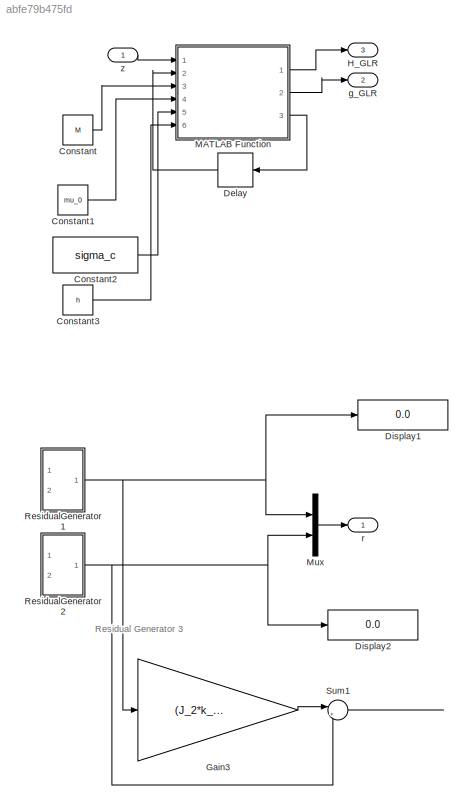
MODEL slx_abfe79b475fd
KIND model
CONFIG AbsTol = auto
CONFIG EnableMultiTasking = off
CONFIG FixedStep = auto
CONFIG MaxStep = auto
CONFIG MinStep = auto
CONFIG RelTol = 1e-3
CONFIG SampleTimeConstraint = Unconstrained
CONFIG Solver = VariableStepAuto
CONFIG SolverName = VariableStepAuto
CONFIG StartTime = 0.0
CONFIG StopTime = 10.0
BLOCK [Constant] Constant
  Value = M
BLOCK [Constant] Constant1
  Value = mu_0
BLOCK [Constant] Constant2
  Value = sigma_c
BLOCK [Constant] Constant3
  Value = h
BLOCK [Delay] Delay
  DelayLength = 1
  InitialCondition = r_window
  InputPortMap = u0
  Ports = [1, 1]
  SampleTime = T_s
BLOCK [Display] Display1
  Decimation = 1
  Ports = [1]
BLOCK [Display] Display2
  Decimation = 1
  Ports = [1]
BLOCK [Gain] Gain3
  Gain = (J_2*k_2)/(J_3*k_1+J_3*k_2)
BLOCK [Outport] H_GLR
  Port = 3
  VectorParamsAs1DForOutWhenUnconnected = off
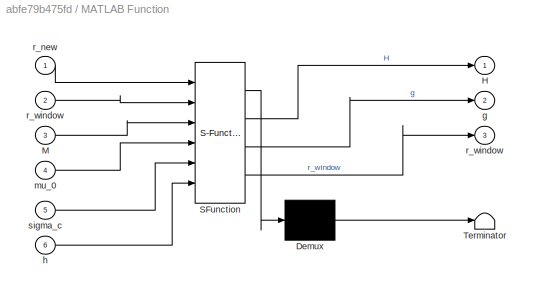
BLOCK [SubSystem] MATLAB Function
  ErrorFcn = Stateflow.Translate.translate
  PermitHierarchicalResolution = ExplicitOnly
  Ports = [6, 3]
  RequestExecContextInheritance = off
  SFBlockType = MATLAB Function
  TreatAsAtomicUnit = on
BLOCK [Demux] MATLAB Function/ Demux 
  Outputs = 1
  Ports = [1, 1]
BLOCK [S-Function] MATLAB Function/ SFunction 
  EnableBusSupport = on
  FunctionName = sf_sfun
  PortCounts = [6 4]
  Ports = [6, 4]
  SFcnIsStateOwnerBlock = off
  SFunctionDeploymentMode = off
  Tag = Stateflow S-Function group10 2
BLOCK [Terminator] MATLAB Function/ Terminator 
BLOCK [Outport] MATLAB Function/H
BLOCK [Inport] MATLAB Function/M
  Port = 3
BLOCK [Outport] MATLAB Function/g
  Port = 2
BLOCK [Inport] MATLAB Function/h
  Port = 6
BLOCK [Inport] MATLAB Function/mu_0
  Port = 4
BLOCK [Inport] MATLAB Function/r_new
BLOCK [Outport] MATLAB Function/r_window
  Port = 3
BLOCK [Inport] MATLAB Function/r_window 
  Port = 2
BLOCK [Inport] MATLAB Function/sigma_c
  Port = 5
BLOCK [Mux] Mux
  DisplayOption = bar
  Inputs = 2
  Ports = [2, 1]
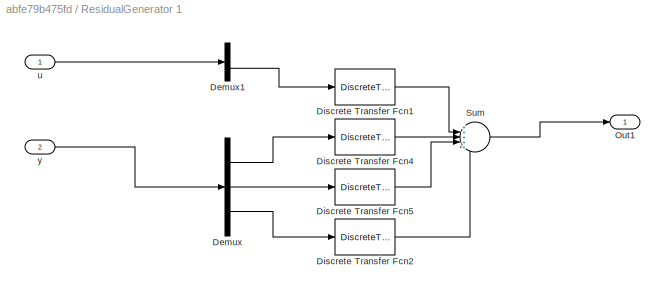
BLOCK [SubSystem] ResidualGenerator 1
  Ports = [2, 1]
  RequestExecContextInheritance = off
BLOCK [Demux] ResidualGenerator 1/Demux
  Outputs = 3
  Ports = [1, 3]
BLOCK [Demux] ResidualGenerator 1/Demux1
  Outputs = 2
  Ports = [1, 2]
BLOCK [DiscreteTransferFcn] ResidualGenerator 1/Discrete Transfer Fcn1
  Denominator = den12
  InputPortMap = u0
  Numerator = num12
  Ports = [1, 1]
BLOCK [DiscreteTransferFcn] ResidualGenerator 1/Discrete Transfer Fcn2
  Denominator = den15
  InputPortMap = u0
  Numerator = num15
  Ports = [1, 1]
BLOCK [DiscreteTransferFcn] ResidualGenerator 1/Discrete Transfer Fcn4
  Denominator = den13
  InputPortMap = u0
  Numerator = num13
  Ports = [1, 1]
BLOCK [DiscreteTransferFcn] ResidualGenerator 1/Discrete Transfer Fcn5
  Denominator = den14
  InputPortMap = u0
  Numerator = num14
  Ports = [1, 1]
BLOCK [Outport] ResidualGenerator 1/Out1
BLOCK [Sum] ResidualGenerator 1/Sum
  Inputs = +++++
  Ports = [5, 1]
BLOCK [Inport] ResidualGenerator 1/u
BLOCK [Inport] ResidualGenerator 1/y
  Port = 2
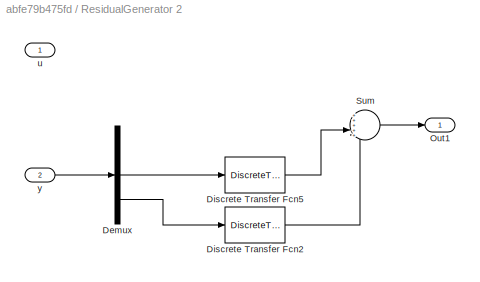
BLOCK [SubSystem] ResidualGenerator 2
  Ports = [2, 1]
  RequestExecContextInheritance = off
BLOCK [Demux] ResidualGenerator 2/Demux
  Outputs = 3
  Ports = [1, 3]
BLOCK [DiscreteTransferFcn] ResidualGenerator 2/Discrete Transfer Fcn2
  Denominator = den25
  InputPortMap = u0
  Numerator = num25
  Ports = [1, 1]
BLOCK [DiscreteTransferFcn] ResidualGenerator 2/Discrete Transfer Fcn5
  Denominator = den24
  InputPortMap = u0
  Numerator = num24
  Ports = [1, 1]
BLOCK [Outport] ResidualGenerator 2/Out1
BLOCK [Sum] ResidualGenerator 2/Sum
  Inputs = +++++
  Ports = [5, 1]
BLOCK [Inport] ResidualGenerator 2/u
BLOCK [Inport] ResidualGenerator 2/y
  Port = 2
BLOCK [Sum] Sum1
  Inputs = |++
  Ports = [2, 1]
BLOCK [Outport] g_GLR
  Port = 2
  VectorParamsAs1DForOutWhenUnconnected = off
BLOCK [Outport] r
  VectorParamsAs1DForOutWhenUnconnected = off
BLOCK [Inport] z
ANNOTATION (root): Residual Generator 3
LINE Constant1:1 -> MATLAB Function:4
LINE Constant2:1 -> MATLAB Function:5
LINE Constant3:1 -> MATLAB Function:6
LINE Constant:1 -> MATLAB Function:3
LINE Delay:1 -> MATLAB Function:2
LINE Gain3:1 -> Sum1:1
LINE MATLAB Function:1 -> H_GLR:1
LINE MATLAB Function:2 -> g_GLR:1
LINE MATLAB Function:3 -> Delay:1
LINE Mux:1 -> r:1
LINE ResidualGenerator 1/Demux1:2 -> ResidualGenerator 1/Discrete Transfer Fcn1:1
LINE ResidualGenerator 1/Demux:1 -> ResidualGenerator 1/Discrete Transfer Fcn4:1
LINE ResidualGenerator 1/Demux:2 -> ResidualGenerator 1/Discrete Transfer Fcn5:1
LINE ResidualGenerator 1/Demux:3 -> ResidualGenerator 1/Discrete Transfer Fcn2:1
LINE ResidualGenerator 1/Discrete Transfer Fcn1:1 -> ResidualGenerator 1/Sum:2
LINE ResidualGenerator 1/Discrete Transfer Fcn2:1 -> ResidualGenerator 1/Sum:5
LINE ResidualGenerator 1/Discrete Transfer Fcn4:1 -> ResidualGenerator 1/Sum:3
LINE ResidualGenerator 1/Discrete Transfer Fcn5:1 -> ResidualGenerator 1/Sum:4
LINE ResidualGenerator 1/Sum:1 -> ResidualGenerator 1/Out1:1
LINE ResidualGenerator 1/u:1 -> ResidualGenerator 1/Demux1:1
LINE ResidualGenerator 1/y:1 -> ResidualGenerator 1/Demux:1
NET ResidualGenerator 1:1 -> Display1:1, Gain3:1, Mux:1
LINE ResidualGenerator 2/Demux:2 -> ResidualGenerator 2/Discrete Transfer Fcn5:1
LINE ResidualGenerator 2/Demux:3 -> ResidualGenerator 2/Discrete Transfer Fcn2:1
LINE ResidualGenerator 2/Discrete Transfer Fcn2:1 -> ResidualGenerator 2/Sum:5
LINE ResidualGenerator 2/Discrete Transfer Fcn5:1 -> ResidualGenerator 2/Sum:4
LINE ResidualGenerator 2/Sum:1 -> ResidualGenerator 2/Out1:1
LINE ResidualGenerator 2/y:1 -> ResidualGenerator 2/Demux:1
NET ResidualGenerator 2:1 -> Display2:1, Mux:2, Sum1:2
LINE z:1 -> MATLAB Function:1
note: NET lines group one-source signal fan-out (src -> all destinations, sorted); 1:1 wires keep LINE
CHART MATLAB Function states=1 transitions=1
  STATE_LABEL 'eML_blk_kernel()'
  STATE_LABEL 'SCRIPT:\nfunction [H, g, r_window] = GLR(r_new, r_window, M, mu_0, sigma_c, h)\n\n%sigma = 0.36229693539067544172329302373852;\n%mu_0 = 0;\n%M = 265;\n%h=7.5684;\n\nr_window = [r_window(2:end); r_new];\n\n\n%Using equation 7.35 from the book\n\n%calculating g from a running window.\ng = 1/(2*sigma_c^2*M)*sum(r_window-mu_0)^2;\n\nif (g > h)\n    H = 1;\nelse\n    H = 0;\nend\n\n\n\n\n\n\n\n'
